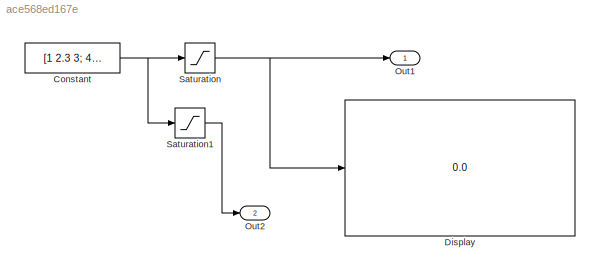
MODEL slx_ace568ed167e
KIND model
CONFIG AbsTol = auto
CONFIG EnableMultiTasking = on
CONFIG FixedStep = 0.200000
CONFIG MaxStep = auto
CONFIG MinStep = auto
CONFIG RelTol = 1e-3
CONFIG SampleTimeConstraint = Unconstrained
CONFIG Solver = ode3
CONFIG SolverName = ode3
CONFIG StartTime = 0.0
CONFIG StopTime = 10.0
BLOCK [Constant] Constant
  Value = [1 2.3 3; 4 5 6]
BLOCK [Display] Display
  Decimation = 1
  Ports = [1]
BLOCK [Outport] Out1
  IconDisplay = Port number
BLOCK [Outport] Out2
  IconDisplay = Port number
  Port = 2
BLOCK [Saturate] Saturation
  InputPortMap = u0
  LowerLimit = 2
  OutDataTypeStr = int8
  OutMax = 5
  OutMin = 2
  Ports = [1, 1]
  UpperLimit = 5
BLOCK [Saturate] Saturation1
  InputPortMap = u0
  LowerLimit = 2
  OutDataTypeStr = Inherit: Inherit via back propagation
  Ports = [1, 1]
  UpperLimit = 5
NET Constant:1 -> Saturation1:1, Saturation:1
LINE Saturation1:1 -> Out2:1
NET Saturation:1 -> Display:1, Out1:1
note: NET lines group one-source signal fan-out (src -> all destinations, sorted); 1:1 wires keep LINE
